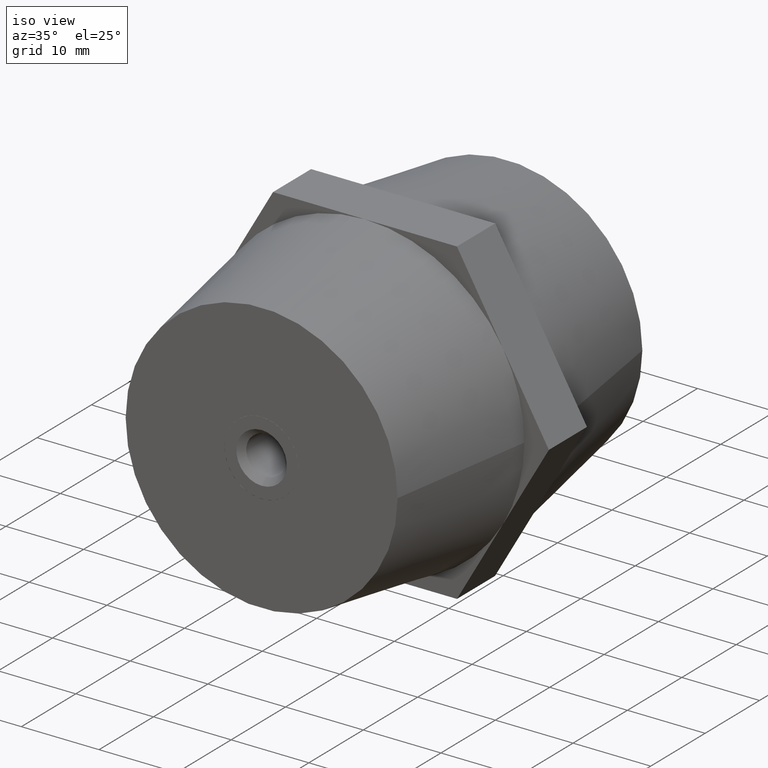
[diagram: clean part render]
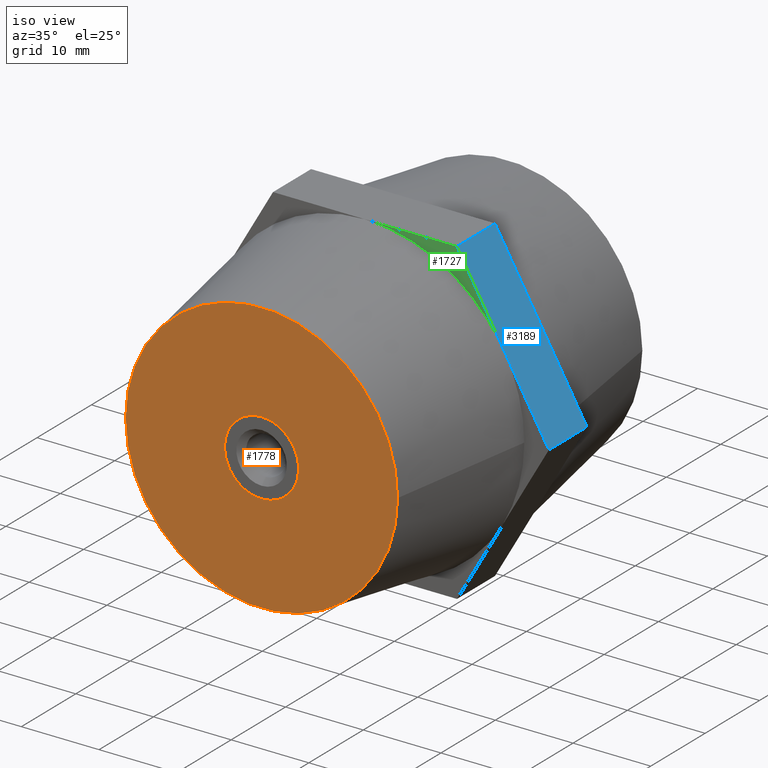
[diagram: same view with three faces highlighted in distinct colors, each labeled with its STEP entity id]
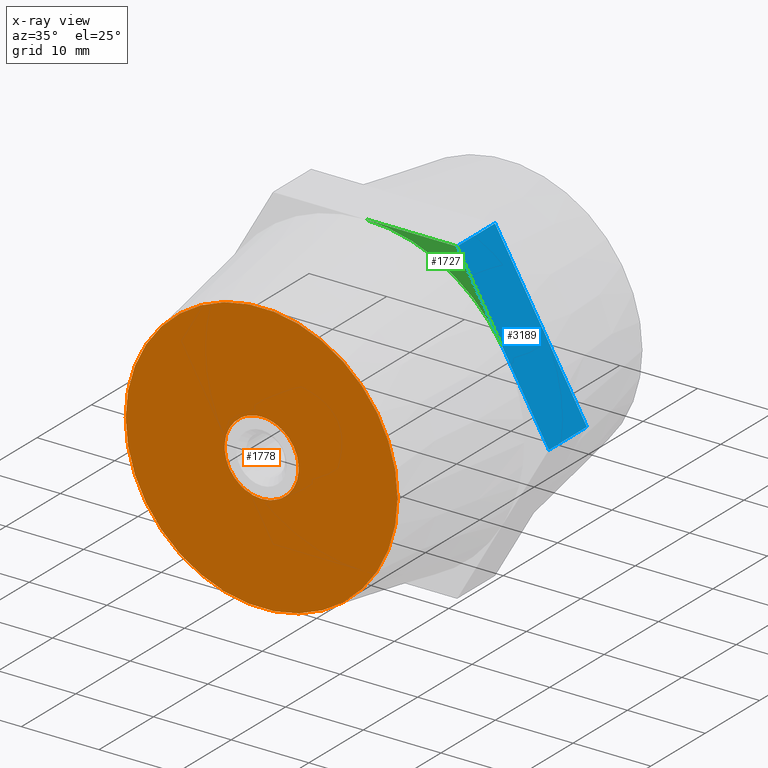
[diagram: x-ray of the same camera — body ghosted, the three highlighted faces saturated]
A machine part, iso view with three faces highlighted in distinct colors.
The next image is the same camera in x-ray (body ghosted, the three faces saturated) — at least one of them is partly hidden behind the body in this view.
Their STEP definitions:

[orange] entity #1778 — the highlighted planar face has unit normal (0, -1, 0).
#5 = CARTESIAN_POINT ( 'NONE',  ( -15.50625000000000000, -22.50000000000000000, 3.453276297590414800 ) ) ;
#7 = LINE ( 'NONE', #853, #3729 ) ;
#30 = DIRECTION ( 'NONE',  ( -0.8660254037844387100, -1.060575238724905700E-016, 0.4999999999999998900 ) ) ;
#46 = CARTESIAN_POINT ( 'NONE',  ( -2.648668211795925000, -22.50000000000000000, -3.970052008956845000 ) ) ;
#76 = ORIENTED_EDGE ( 'NONE', *, *, #868, .T. ) ;
#101 = CARTESIAN_POINT ( 'NONE',  ( -10.74375000000000000, -22.50000000000000000, 11.70216826863725900 ) ) ;
#103 = VERTEX_POINT ( 'NONE', #3882 ) ;
#118 = DIRECTION ( 'NONE',  ( 1.000000000000000000, 0.0000000000000000000, 0.0000000000000000000 ) ) ;
#159 = DIRECTION ( 'NONE',  ( -1.224646799147353900E-016, 1.000000000000000000, -0.0000000000000000000 ) ) ;
#199 = EDGE_CURVE ( 'NONE', #103, #2156, #1289, .T. ) ;
#202 = CARTESIAN_POINT ( 'NONE',  ( 5.844626848930779400E-016, -22.50000000000000000, 0.0000000000000000000 ) ) ;
#219 = CARTESIAN_POINT ( 'NONE',  ( 5.844626848930779400E-016, -22.50000000000000000, 0.0000000000000000000 ) ) ;
#271 = VERTEX_POINT ( 'NONE', #3687 ) ;
#286 = LINE ( 'NONE', #101, #3586 ) ;
#312 = VERTEX_POINT ( 'NONE', #3140 ) ;
#320 = AXIS2_PLACEMENT_3D ( 'NONE', #1900, #2575, #1305 ) ;
#328 = CARTESIAN_POINT ( 'NONE',  ( 5.510910596163089600E-015, -22.50000000000000000, 0.0000000000000000000 ) ) ;
#397 = EDGE_CURVE ( 'NONE', #312, #1580, #2430, .T. ) ;
#422 = DIRECTION ( 'NONE',  ( -1.224646799147353900E-016, 1.000000000000000000, -0.0000000000000000000 ) ) ;
#434 = CARTESIAN_POINT ( 'NONE',  ( 5.510910596163089600E-015, -22.50000000000000000, 0.0000000000000000000 ) ) ;
#470 = CARTESIAN_POINT ( 'NONE',  ( 4.762500000000000200, -22.50000000000000000, 0.3087879531336735200 ) ) ;
#539 = EDGE_CURVE ( 'NONE', #2382, #312, #3022, .T. ) ;
#623 = EDGE_CURVE ( 'NONE', #1016, #1776, #3667, .T. ) ;
#669 = VERTEX_POINT ( 'NONE', #3436 ) ;
#702 = DIRECTION ( 'NONE',  ( 0.8660254037844383700, 1.060575238724906500E-016, 0.5000000000000003300 ) ) ;
#718 = VERTEX_POINT ( 'NONE', #3713 ) ;
#782 = CARTESIAN_POINT ( 'NONE',  ( -17.50000000000000000, -22.50000000000000000, 0.0000000000000000000 ) ) ;
#791 = ORIENTED_EDGE ( 'NONE', *, *, #3086, .F. ) ;
#821 = LINE ( 'NONE', #2042, #906 ) ;
#846 = AXIS2_PLACEMENT_3D ( 'NONE', #1945, #159, #3500 ) ;
#853 = CARTESIAN_POINT ( 'NONE',  ( -10.74375000000000000, -22.50000000000000000, -11.70216826863721900 ) ) ;
#868 = EDGE_CURVE ( 'NONE', #2287, #103, #1447, .T. ) ;
#878 = ORIENTED_EDGE ( 'NONE', *, *, #3533, .T. ) ;
#879 = EDGE_CURVE ( 'NONE', #669, #718, #3403, .T. ) ;
#906 = VECTOR ( 'NONE', #1419, 1000.000000000000000 ) ;
#952 = AXIS2_PLACEMENT_3D ( 'NONE', #3188, #422, #118 ) ;
#960 = CARTESIAN_POINT ( 'NONE',  ( 2.648668211796244800, -22.50000000000000000, -3.970052008956629600 ) ) ;
#1010 = ORIENTED_EDGE ( 'NONE', *, *, #2264, .T. ) ;
#1016 = VERTEX_POINT ( 'NONE', #3354 ) ;
#1089 = PLANE ( 'NONE',  #2323 ) ;
#1137 = DIRECTION ( 'NONE',  ( -0.8660254037844387100, -1.060575238724907700E-016, -0.4999999999999998900 ) ) ;
#1188 = EDGE_CURVE ( 'NONE', #271, #2736, #2400, .T. ) ;
#1210 = CIRCLE ( 'NONE', #3360, 17.50000000000000000 ) ;
#1256 = LINE ( 'NONE', #5, #3581 ) ;
#1289 = LINE ( 'NONE', #2771, #3434 ) ;
#1299 = CARTESIAN_POINT ( 'NONE',  ( -4.762500000000000200, -22.50000000000000000, 0.3087879531330650100 ) ) ;
#1305 = DIRECTION ( 'NONE',  ( 1.000000000000000000, 0.0000000000000000000, 0.0000000000000000000 ) ) ;
#1365 = FACE_OUTER_BOUND ( 'NONE', #1725, .T. ) ;
#1390 = CARTESIAN_POINT ( 'NONE',  ( 2.648668211795759800, -22.50000000000000000, 3.970052008956955100 ) ) ;
#1419 = DIRECTION ( 'NONE',  ( 0.0000000000000000000, 0.0000000000000000000, -1.000000000000000000 ) ) ;
#1447 = CIRCLE ( 'NONE', #3598, 4.772500000000000000 ) ;
#1572 = EDGE_CURVE ( 'NONE', #3590, #3526, #1691, .T. ) ;
#1580 = VERTEX_POINT ( 'NONE', #2247 ) ;
#1691 = CIRCLE ( 'NONE', #952, 4.772500000000000000 ) ;
#1725 = EDGE_LOOP ( 'NONE', ( #791, #3888 ) ) ;
#1776 = VERTEX_POINT ( 'NONE', #2589 ) ;
#1778 = ADVANCED_FACE ( 'NONE', ( #1365, #3682 ), #1089, .T. ) ;
#1810 = DIRECTION ( 'NONE',  ( -1.224646799147353900E-016, 1.000000000000000000, -0.0000000000000000000 ) ) ;
#1900 = CARTESIAN_POINT ( 'NONE',  ( 5.844626848930779400E-016, -22.50000000000000000, 0.0000000000000000000 ) ) ;
#1905 = ORIENTED_EDGE ( 'NONE', *, *, #1932, .T. ) ;
#1926 = AXIS2_PLACEMENT_3D ( 'NONE', #328, #2091, #2655 ) ;
#1932 = EDGE_CURVE ( 'NONE', #3526, #271, #821, .T. ) ;
#1935 = EDGE_CURVE ( 'NONE', #2736, #1016, #7, .T. ) ;
#1945 = CARTESIAN_POINT ( 'NONE',  ( 5.844626848930779400E-016, -22.50000000000000000, 0.0000000000000000000 ) ) ;
#1946 = ORIENTED_EDGE ( 'NONE', *, *, #539, .T. ) ;
#1968 = DIRECTION ( 'NONE',  ( 1.000000000000000000, 0.0000000000000000000, 0.0000000000000000000 ) ) ;
#1993 = ORIENTED_EDGE ( 'NONE', *, *, #1188, .T. ) ;
#2042 = CARTESIAN_POINT ( 'NONE',  ( 4.762500000000000200, -22.50000000000000000, 0.0000000000000000000 ) ) ;
#2091 = DIRECTION ( 'NONE',  ( -1.224646799147353900E-016, 1.000000000000000000, 0.0000000000000000000 ) ) ;
#2133 = ORIENTED_EDGE ( 'NONE', *, *, #1935, .T. ) ;
#2152 = DIRECTION ( 'NONE',  ( 0.8660254037844387100, 1.060575238724905700E-016, -0.4999999999999998900 ) ) ;
#2156 = VERTEX_POINT ( 'NONE', #1299 ) ;
#2178 = CARTESIAN_POINT ( 'NONE',  ( -15.50625000000000000, -22.50000000000000000, -3.453276297590425000 ) ) ;
#2189 = ORIENTED_EDGE ( 'NONE', *, *, #2914, .T. ) ;
#2199 = ORIENTED_EDGE ( 'NONE', *, *, #3284, .T. ) ;
#2247 = CARTESIAN_POINT ( 'NONE',  ( 4.525935369310004300E-030, -22.50000000000000000, 4.772500000000000000 ) ) ;
#2264 = EDGE_CURVE ( 'NONE', #2964, #3590, #286, .T. ) ;
#2277 = DIRECTION ( 'NONE',  ( -1.000000000000000000, -1.982541115402065400E-016, 0.0000000000000000000 ) ) ;
#2287 = VERTEX_POINT ( 'NONE', #46 ) ;
#2306 = DIRECTION ( 'NONE',  ( 1.000000000000000000, 0.0000000000000000000, 1.776356839400250500E-015 ) ) ;
#2323 = AXIS2_PLACEMENT_3D ( 'NONE', #782, #3510, #3522 ) ;
#2353 = AXIS2_PLACEMENT_3D ( 'NONE', #2531, #3087, #3097 ) ;
#2382 = VERTEX_POINT ( 'NONE', #3162 ) ;
#2400 = CIRCLE ( 'NONE', #2527, 4.772500000000000000 ) ;
#2430 = CIRCLE ( 'NONE', #3025, 4.772500000000000000 ) ;
#2484 = ORIENTED_EDGE ( 'NONE', *, *, #623, .T. ) ;
#2490 = ORIENTED_EDGE ( 'NONE', *, *, #1572, .T. ) ;
#2527 = AXIS2_PLACEMENT_3D ( 'NONE', #202, #2588, #1968 ) ;
#2531 = CARTESIAN_POINT ( 'NONE',  ( 5.844626848930779400E-016, -22.50000000000000000, 0.0000000000000000000 ) ) ;
#2575 = DIRECTION ( 'NONE',  ( -1.224646799147353900E-016, 1.000000000000000000, -0.0000000000000000000 ) ) ;
#2588 = DIRECTION ( 'NONE',  ( -1.224646799147353900E-016, 1.000000000000000000, -0.0000000000000000000 ) ) ;
#2589 = CARTESIAN_POINT ( 'NONE',  ( -2.113831788204110200, -22.50000000000000000, -4.278839962089994800 ) ) ;
#2655 = DIRECTION ( 'NONE',  ( -1.000000000000000000, -1.982541115402065400E-016, 0.0000000000000000000 ) ) ;
#2718 = EDGE_LOOP ( 'NONE', ( #1010, #2490, #1905, #1993, #2133, #2484, #2199, #76, #3429, #2189, #1946, #3869, #878 ) ) ;
#2736 = VERTEX_POINT ( 'NONE', #960 ) ;
#2771 = CARTESIAN_POINT ( 'NONE',  ( -4.762500000000000200, -22.50000000000000000, -1.607200604843199800E-014 ) ) ;
#2786 = VECTOR ( 'NONE', #702, 1000.000000000000100 ) ;
#2855 = DIRECTION ( 'NONE',  ( -1.224646799147353900E-016, 1.000000000000000000, 0.0000000000000000000 ) ) ;
#2914 = EDGE_CURVE ( 'NONE', #2156, #2382, #3023, .T. ) ;
#2964 = VERTEX_POINT ( 'NONE', #3706 ) ;
#3022 = LINE ( 'NONE', #2178, #2786 ) ;
#3023 = CIRCLE ( 'NONE', #2353, 4.772500000000000000 ) ;
#3025 = AXIS2_PLACEMENT_3D ( 'NONE', #219, #3809, #2306 ) ;
#3036 = DIRECTION ( 'NONE',  ( 1.000000000000000000, 0.0000000000000000000, -8.881784197001252300E-016 ) ) ;
#3086 = EDGE_CURVE ( 'NONE', #718, #669, #1210, .T. ) ;
#3087 = DIRECTION ( 'NONE',  ( -1.224646799147353900E-016, 1.000000000000000000, -0.0000000000000000000 ) ) ;
#3097 = DIRECTION ( 'NONE',  ( 1.000000000000000000, 0.0000000000000000000, 0.0000000000000000000 ) ) ;
#3140 = CARTESIAN_POINT ( 'NONE',  ( -2.113831788204249700, -22.50000000000000000, 4.278839962089924700 ) ) ;
#3162 = CARTESIAN_POINT ( 'NONE',  ( -2.648668211795810000, -22.50000000000000000, 3.970052008956924400 ) ) ;
#3188 = CARTESIAN_POINT ( 'NONE',  ( 5.844626848930779400E-016, -22.50000000000000000, 0.0000000000000000000 ) ) ;
#3284 = EDGE_CURVE ( 'NONE', #1776, #2287, #1256, .T. ) ;
#3354 = CARTESIAN_POINT ( 'NONE',  ( 2.113831788203754900, -22.50000000000000000, -4.278839962090169800 ) ) ;
#3360 = AXIS2_PLACEMENT_3D ( 'NONE', #434, #2855, #2277 ) ;
#3403 = CIRCLE ( 'NONE', #1926, 17.50000000000000000 ) ;
#3429 = ORIENTED_EDGE ( 'NONE', *, *, #199, .T. ) ;
#3434 = VECTOR ( 'NONE', #3660, 1000.000000000000000 ) ;
#3436 = CARTESIAN_POINT ( 'NONE',  ( 17.50000000000000700, -22.49999999999999600, 2.326828918379971400E-015 ) ) ;
#3500 = DIRECTION ( 'NONE',  ( 1.000000000000000000, 0.0000000000000000000, 0.0000000000000000000 ) ) ;
#3510 = DIRECTION ( 'NONE',  ( 1.224646799147353900E-016, -1.000000000000000000, 0.0000000000000000000 ) ) ;
#3522 = DIRECTION ( 'NONE',  ( 1.000000000000000000, 1.224646799147353900E-016, 0.0000000000000000000 ) ) ;
#3526 = VERTEX_POINT ( 'NONE', #470 ) ;
#3533 = EDGE_CURVE ( 'NONE', #1580, #2964, #3668, .T. ) ;
#3581 = VECTOR ( 'NONE', #30, 1000.000000000000000 ) ;
#3586 = VECTOR ( 'NONE', #2152, 1000.000000000000000 ) ;
#3590 = VERTEX_POINT ( 'NONE', #1390 ) ;
#3598 = AXIS2_PLACEMENT_3D ( 'NONE', #3605, #1810, #3036 ) ;
#3605 = CARTESIAN_POINT ( 'NONE',  ( 5.844626848930779400E-016, -22.50000000000000000, 0.0000000000000000000 ) ) ;
#3660 = DIRECTION ( 'NONE',  ( 1.261786539621752000E-015, 1.545242846954995000E-031, 1.000000000000000000 ) ) ;
#3667 = CIRCLE ( 'NONE', #320, 4.772500000000000000 ) ;
#3668 = CIRCLE ( 'NONE', #846, 4.772500000000000000 ) ;
#3682 = FACE_BOUND ( 'NONE', #2718, .T. ) ;
#3687 = CARTESIAN_POINT ( 'NONE',  ( 4.762500000000000200, -22.50000000000000000, -0.3087879531337025500 ) ) ;
#3706 = CARTESIAN_POINT ( 'NONE',  ( 2.113831788204295000, -22.50000000000000000, 4.278839962089905100 ) ) ;
#3713 = CARTESIAN_POINT ( 'NONE',  ( -17.49999999999999600, -22.50000000000000400, 0.0000000000000000000 ) ) ;
#3729 = VECTOR ( 'NONE', #1137, 1000.000000000000000 ) ;
#3809 = DIRECTION ( 'NONE',  ( -1.224646799147353900E-016, 1.000000000000000000, -0.0000000000000000000 ) ) ;
#3869 = ORIENTED_EDGE ( 'NONE', *, *, #397, .T. ) ;
#3882 = CARTESIAN_POINT ( 'NONE',  ( -4.762500000000000200, -22.50000000000000000, -0.3087879531330525200 ) ) ;
#3888 = ORIENTED_EDGE ( 'NONE', *, *, #879, .F. ) ;

[blue] entity #3189 — the highlighted planar face has unit normal (-0.866, 0, -0.5).
#8 = LINE ( 'NONE', #13, #441 ) ;
#13 = CARTESIAN_POINT ( 'NONE',  ( 11.83568051838732100, 3.500000000000000000, 20.50000000000000000 ) ) ;
#117 = CARTESIAN_POINT ( 'NONE',  ( 11.83568051838732100, -3.500000000000000000, 20.50000000000000000 ) ) ;
#135 = DIRECTION ( 'NONE',  ( 0.0000000000000000000, -1.000000000000000000, 0.0000000000000000000 ) ) ;
#161 = EDGE_CURVE ( 'NONE', #3773, #266, #2540, .T. ) ;
#266 = VERTEX_POINT ( 'NONE', #958 ) ;
#441 = VECTOR ( 'NONE', #3313, 1000.000000000000000 ) ;
#610 = VECTOR ( 'NONE', #3369, 1000.000000000000000 ) ;
#638 = VECTOR ( 'NONE', #2198, 1000.000000000000000 ) ;
#709 = AXIS2_PLACEMENT_3D ( 'NONE', #1107, #1716, #1403 ) ;
#759 = VECTOR ( 'NONE', #3187, 1000.000000000000000 ) ;
#812 = EDGE_CURVE ( 'NONE', #2422, #1171, #3176, .T. ) ;
#818 = LINE ( 'NONE', #3676, #610 ) ;
#901 = LINE ( 'NONE', #2765, #2793 ) ;
#958 = CARTESIAN_POINT ( 'NONE',  ( 23.67136103677464800, -3.500000000000000000, -6.903896913073319100E-015 ) ) ;
#1107 = CARTESIAN_POINT ( 'NONE',  ( 11.83568051838732100, 3.500000000000000000, 20.50000000000000000 ) ) ;
#1171 = VERTEX_POINT ( 'NONE', #3490 ) ;
#1276 = CARTESIAN_POINT ( 'NONE',  ( 11.83568051838732100, -3.500000000000000000, 20.50000000000000000 ) ) ;
#1285 = ORIENTED_EDGE ( 'NONE', *, *, #2370, .T. ) ;
#1364 = ORIENTED_EDGE ( 'NONE', *, *, #812, .F. ) ;
#1375 = PLANE ( 'NONE',  #709 ) ;
#1403 = DIRECTION ( 'NONE',  ( -0.4999999999999998900, 0.0000000000000000000, 0.8660254037844387100 ) ) ;
#1559 = CARTESIAN_POINT ( 'NONE',  ( 11.83568051838732100, -3.500000000000000000, 20.50000000000000000 ) ) ;
#1564 = CARTESIAN_POINT ( 'NONE',  ( 11.83568051838732100, 3.500000000000000000, 20.50000000000000000 ) ) ;
#1591 = ORIENTED_EDGE ( 'NONE', *, *, #2925, .T. ) ;
#1657 = DIRECTION ( 'NONE',  ( 0.4999999999999998900, 0.0000000000000000000, -0.8660254037844387100 ) ) ;
#1716 = DIRECTION ( 'NONE',  ( -0.8660254037844387100, 0.0000000000000000000, -0.4999999999999998900 ) ) ;
#1833 = LINE ( 'NONE', #117, #759 ) ;
#1909 = ORIENTED_EDGE ( 'NONE', *, *, #2292, .F. ) ;
#1997 = ORIENTED_EDGE ( 'NONE', *, *, #161, .T. ) ;
#2198 = DIRECTION ( 'NONE',  ( 0.4999999999999998900, 0.0000000000000000000, -0.8660254037844387100 ) ) ;
#2292 = EDGE_CURVE ( 'NONE', #1171, #266, #901, .T. ) ;
#2316 = FACE_OUTER_BOUND ( 'NONE', #3442, .T. ) ;
#2370 = EDGE_CURVE ( 'NONE', #2898, #3773, #1833, .T. ) ;
#2422 = VERTEX_POINT ( 'NONE', #3760 ) ;
#2540 = LINE ( 'NONE', #1276, #638 ) ;
#2765 = CARTESIAN_POINT ( 'NONE',  ( 23.67136103677464800, 3.500000000000000000, -6.903896913073319100E-015 ) ) ;
#2793 = VECTOR ( 'NONE', #135, 1000.000000000000000 ) ;
#2898 = VERTEX_POINT ( 'NONE', #1559 ) ;
#2925 = EDGE_CURVE ( 'NONE', #3770, #2898, #818, .T. ) ;
#2978 = CARTESIAN_POINT ( 'NONE',  ( 11.83568051838732100, 3.500000000000000000, 20.50000000000000000 ) ) ;
#3071 = VECTOR ( 'NONE', #1657, 1000.000000000000000 ) ;
#3176 = LINE ( 'NONE', #1564, #3071 ) ;
#3187 = DIRECTION ( 'NONE',  ( 0.4999999999999998900, 0.0000000000000000000, -0.8660254037844387100 ) ) ;
#3189 = ADVANCED_FACE ( 'NONE', ( #2316 ), #1375, .F. ) ;
#3313 = DIRECTION ( 'NONE',  ( 0.4999999999999998900, 0.0000000000000000000, -0.8660254037844387100 ) ) ;
#3369 = DIRECTION ( 'NONE',  ( 0.0000000000000000000, -1.000000000000000000, 0.0000000000000000000 ) ) ;
#3442 = EDGE_LOOP ( 'NONE', ( #1285, #1997, #1909, #1364, #3654, #1591 ) ) ;
#3490 = CARTESIAN_POINT ( 'NONE',  ( 23.67136103677464800, 3.500000000000000000, -6.903896913073319100E-015 ) ) ;
#3595 = CARTESIAN_POINT ( 'NONE',  ( 17.75352077758099900, -3.500000000000000000, 10.25000000000000000 ) ) ;
#3654 = ORIENTED_EDGE ( 'NONE', *, *, #3695, .F. ) ;
#3676 = CARTESIAN_POINT ( 'NONE',  ( 11.83568051838732100, 3.500000000000000000, 20.50000000000000000 ) ) ;
#3695 = EDGE_CURVE ( 'NONE', #3770, #2422, #8, .T. ) ;
#3760 = CARTESIAN_POINT ( 'NONE',  ( 17.75352077758099900, 3.500000000000000000, 10.25000000000000000 ) ) ;
#3770 = VERTEX_POINT ( 'NONE', #2978 ) ;
#3773 = VERTEX_POINT ( 'NONE', #3595 ) ;

[green] entity #1727 — the highlighted planar face has unit normal (0, 1, 0).
#3 = DIRECTION ( 'NONE',  ( 0.0000000000000000000, 0.0000000000000000000, 1.000000000000000000 ) ) ;
#86 = ORIENTED_EDGE ( 'NONE', *, *, #2673, .T. ) ;
#106 = DIRECTION ( 'NONE',  ( 1.000000000000000000, 0.0000000000000000000, 1.465672779255763900E-016 ) ) ;
#117 = CARTESIAN_POINT ( 'NONE',  ( 11.83568051838732100, -3.500000000000000000, 20.50000000000000000 ) ) ;
#144 = LINE ( 'NONE', #1562, #3264 ) ;
#203 = DIRECTION ( 'NONE',  ( 0.0000000000000000000, 0.0000000000000000000, 1.000000000000000000 ) ) ;
#326 = AXIS2_PLACEMENT_3D ( 'NONE', #1211, #1800, #3 ) ;
#759 = VECTOR ( 'NONE', #3187, 1000.000000000000000 ) ;
#836 = VERTEX_POINT ( 'NONE', #2577 ) ;
#1068 = EDGE_CURVE ( 'NONE', #836, #2898, #144, .T. ) ;
#1071 = DIRECTION ( 'NONE',  ( 0.0000000000000000000, 1.000000000000000000, 0.0000000000000000000 ) ) ;
#1211 = CARTESIAN_POINT ( 'NONE',  ( 3.184081677783119800E-015, -3.500000000000000000, 3.963988323555905400E-016 ) ) ;
#1258 = ORIENTED_EDGE ( 'NONE', *, *, #2370, .F. ) ;
#1377 = ORIENTED_EDGE ( 'NONE', *, *, #1068, .F. ) ;
#1559 = CARTESIAN_POINT ( 'NONE',  ( 11.83568051838732100, -3.500000000000000000, 20.50000000000000000 ) ) ;
#1562 = CARTESIAN_POINT ( 'NONE',  ( -11.83568051838734000, -3.500000000000000000, 20.50000000000000000 ) ) ;
#1573 = EDGE_LOOP ( 'NONE', ( #1377, #86, #1258 ) ) ;
#1665 = PLANE ( 'NONE',  #3731 ) ;
#1727 = ADVANCED_FACE ( 'NONE', ( #2514 ), #1665, .F. ) ;
#1800 = DIRECTION ( 'NONE',  ( 0.0000000000000000000, 1.000000000000000000, 0.0000000000000000000 ) ) ;
#1833 = LINE ( 'NONE', #117, #759 ) ;
#2370 = EDGE_CURVE ( 'NONE', #2898, #3773, #1833, .T. ) ;
#2514 = FACE_OUTER_BOUND ( 'NONE', #1573, .T. ) ;
#2577 = CARTESIAN_POINT ( 'NONE',  ( 1.794524803088000300E-016, -3.500000000000000000, 20.50000000000000000 ) ) ;
#2673 = EDGE_CURVE ( 'NONE', #836, #3773, #2741, .T. ) ;
#2741 = CIRCLE ( 'NONE', #326, 20.50000000000000000 ) ;
#2898 = VERTEX_POINT ( 'NONE', #1559 ) ;
#3187 = DIRECTION ( 'NONE',  ( 0.4999999999999998900, 0.0000000000000000000, -0.8660254037844387100 ) ) ;
#3264 = VECTOR ( 'NONE', #106, 1000.000000000000000 ) ;
#3479 = CARTESIAN_POINT ( 'NONE',  ( 0.0000000000000000000, -3.500000000000000000, 0.0000000000000000000 ) ) ;
#3595 = CARTESIAN_POINT ( 'NONE',  ( 17.75352077758099900, -3.500000000000000000, 10.25000000000000000 ) ) ;
#3731 = AXIS2_PLACEMENT_3D ( 'NONE', #3479, #1071, #203 ) ;
#3773 = VERTEX_POINT ( 'NONE', #3595 ) ;